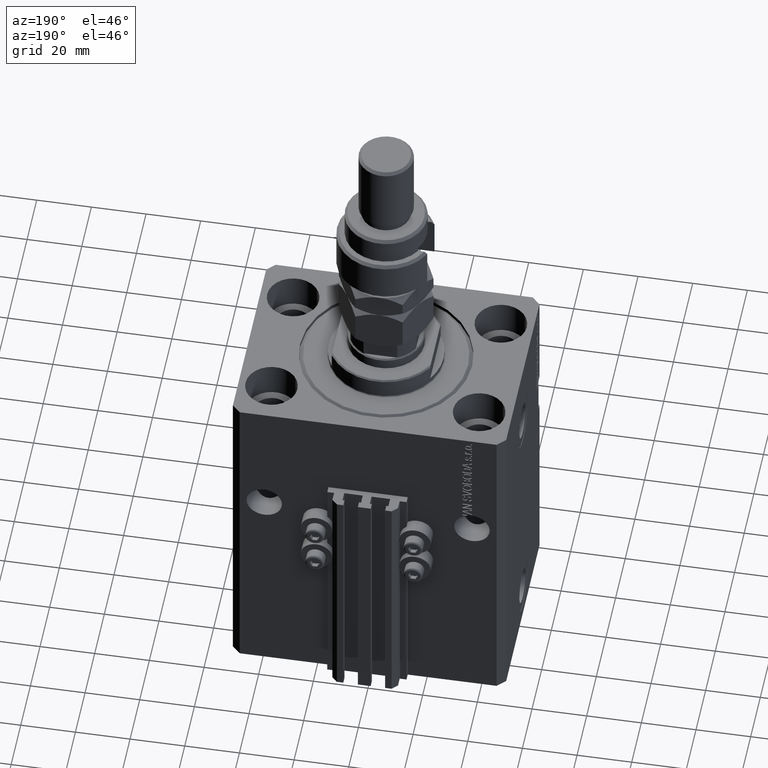
[diagram: clean part render]
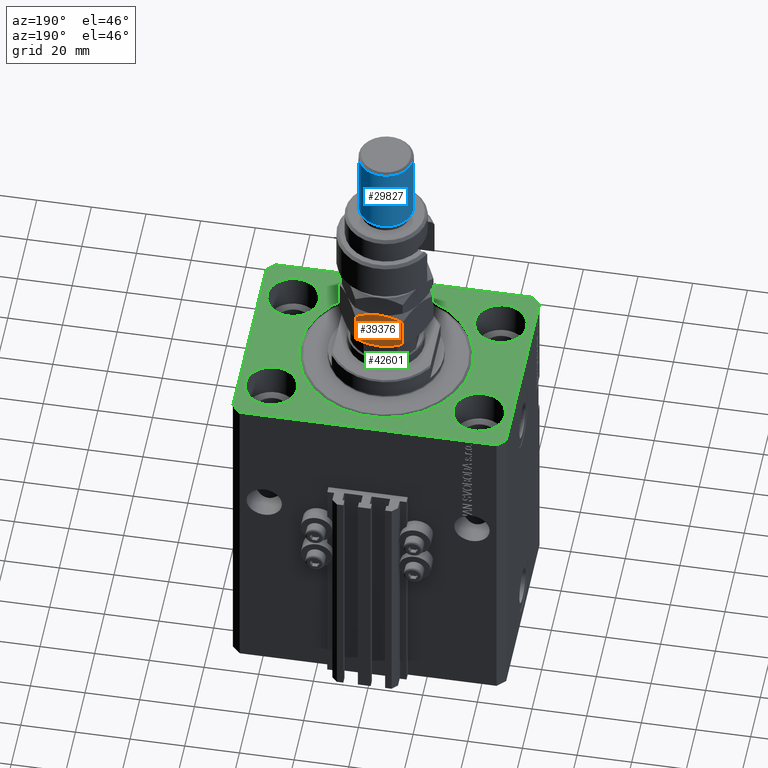
[diagram: same view with three faces highlighted in distinct colors, each labeled with its STEP entity id]
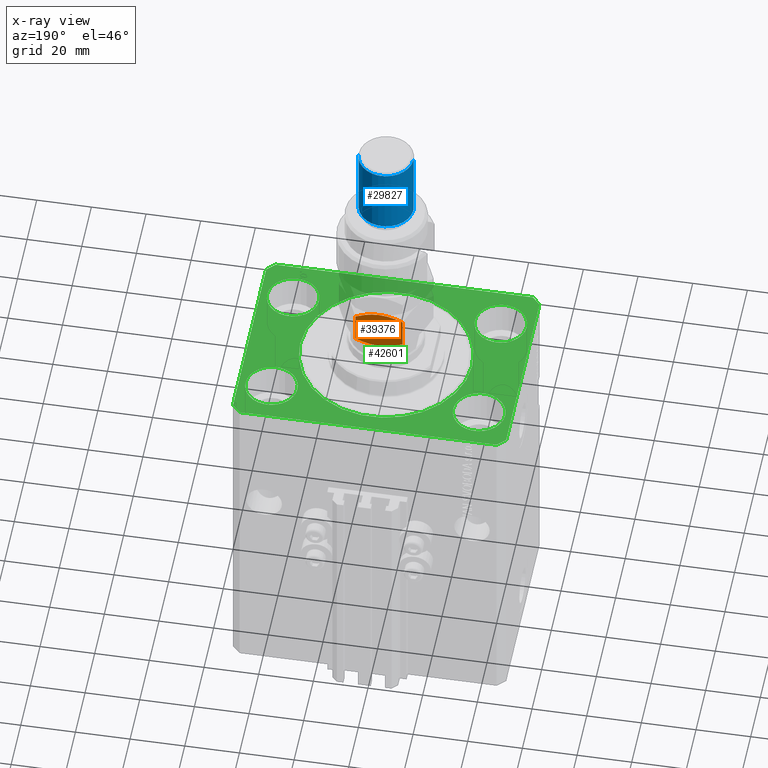
[diagram: x-ray of the same camera — body ghosted, the three highlighted faces saturated]
A machine part, auxiliary view with three faces highlighted in distinct colors.
The next image is the same camera in x-ray (body ghosted, the three faces saturated) — at least one of them is partly hidden behind the body in this view.
Their STEP definitions:

[orange] entity #39376 — the highlighted planar face has unit normal (0, -1, 0).
#1253 = CARTESIAN_POINT ( 'NONE',  ( -7.499999999999992895, 12.99038105676658361, 0.000000000000000000 ) ) ;
#1356 = CARTESIAN_POINT ( 'NONE',  ( -2.383929548160348855, 15.94414570932928576, 1.060479031370877401 ) ) ;
#2231 = ORIENTED_EDGE ( 'NONE', *, *, #24499, .F. ) ;
#2260 = EDGE_CURVE ( 'NONE', #4050, #44519, #44804, .T. ) ;
#2939 = CARTESIAN_POINT ( 'NONE',  ( -15.00000000000000000, 8.660254037844392627, 13.67949192431123429 ) ) ;
#3282 = ORIENTED_EDGE ( 'NONE', *, *, #18546, .T. ) ;
#3288 = VERTEX_POINT ( 'NONE', #19248 ) ;
#3610 = CARTESIAN_POINT ( 'NONE',  ( -15.00000000000000000, 8.660254037844392627, 13.67949192431123429 ) ) ;
#3842 = CARTESIAN_POINT ( 'NONE',  ( -12.62116548881249400, 10.03367478323607109, 1.064486067744009556 ) ) ;
#4050 = VERTEX_POINT ( 'NONE', #16552 ) ;
#4214 = CARTESIAN_POINT ( 'NONE',  ( 7.621669386706803087E-17, 17.32050807568877104, 2.320508075688761718 ) ) ;
#5192 = CARTESIAN_POINT ( 'NONE',  ( 7.621669386706803087E-17, 17.32050807568877104, 2.320508075688761718 ) ) ;
#6114 = CARTESIAN_POINT ( 'NONE',  ( -15.00000000000000000, 8.660254037844394404, 2.320508075688769711 ) ) ;
#6126 = DIRECTION ( 'NONE',  ( 0.4999999999999995559, -0.8660254037844389297, 0.000000000000000000 ) ) ;
#6305 = CARTESIAN_POINT ( 'NONE',  ( -6.843123817691743938, 13.36962869744650995, 16.00000000000000355 ) ) ;
#7519 = CARTESIAN_POINT ( 'NONE',  ( -13.82525345580783771, 9.338494271363320109, 14.35773215783021683 ) ) ;
#10585 = CARTESIAN_POINT ( 'NONE',  ( -7.499999999999991118, 12.99038105676658184, 16.00000000000000000 ) ) ;
#10698 = PLANE ( 'NONE',  #24528 ) ;
#10879 = CARTESIAN_POINT ( 'NONE',  ( -6.176419610670691895, 13.75455055083996747, 15.94046462602529957 ) ) ;
#12485 = CARTESIAN_POINT ( 'NONE',  ( -13.82389157469336283, 9.339280553791375894, 1.641481559741795548 ) ) ;
#12591 = B_SPLINE_CURVE_WITH_KNOTS ( 'NONE', 3,
 ( #10585, #18729, #30508, #18989, #7519, #2939 ),
 .UNSPECIFIED., .F., .F.,
 ( 4, 2, 4 ),
 ( 0.008977392552884438590, 0.01343452311421656012, 0.01789165367554868338 ),
 .UNSPECIFIED. ) ;
#14704 = CARTESIAN_POINT ( 'NONE',  ( -7.499999999999991118, 12.99038105676658184, 16.00000000000000000 ) ) ;
#15205 = CARTESIAN_POINT ( 'NONE',  ( -15.00000000000000000, 8.660254037844392627, 16.00000000000000000 ) ) ;
#15247 = VERTEX_POINT ( 'NONE', #3610 ) ;
#15683 = ORIENTED_EDGE ( 'NONE', *, *, #45319, .F. ) ;
#15720 = DIRECTION ( 'NONE',  ( -0.000000000000000000, -0.000000000000000000, -1.000000000000000000 ) ) ;
#15872 = VECTOR ( 'NONE', #16933, 1000.000000000000000 ) ;
#16414 = VERTEX_POINT ( 'NONE', #16677 ) ;
#16552 = CARTESIAN_POINT ( 'NONE',  ( -7.499999999999992895, 12.99038105676658361, 0.000000000000000000 ) ) ;
#16677 = CARTESIAN_POINT ( 'NONE',  ( 3.803331551779305683E-16, 17.32050807568877104, 13.67949192431124317 ) ) ;
#16933 = DIRECTION ( 'NONE',  ( -0.000000000000000000, -0.000000000000000000, -1.000000000000000000 ) ) ;
#17056 = CARTESIAN_POINT ( 'NONE',  ( -10.11832554202262280, 11.47869010025375403, 0.2838026619462963862 ) ) ;
#18546 = EDGE_CURVE ( 'NONE', #16414, #44519, #36112, .T. ) ;
#18729 = CARTESIAN_POINT ( 'NONE',  ( -8.804550678576905653, 12.23719837131869781, 16.00000000000000000 ) ) ;
#18989 = CARTESIAN_POINT ( 'NONE',  ( -12.61607045183964715, 10.03661640420387435, 14.93952096862911816 ) ) ;
#19248 = CARTESIAN_POINT ( 'NONE',  ( -7.499999999999991118, 12.99038105676658184, 16.00000000000000000 ) ) ;
#19253 = ORIENTED_EDGE ( 'NONE', *, *, #2260, .F. ) ;
#19754 = CARTESIAN_POINT ( 'NONE',  ( -1.174746544192158293, 16.64226784216984356, 1.642267842169780501 ) ) ;
#20011 = VECTOR ( 'NONE', #15720, 1000.000000000000000 ) ;
#22127 = CARTESIAN_POINT ( 'NONE',  ( -2.378834511187503331, 15.94708733029709435, 14.93551393225599710 ) ) ;
#22376 = CARTESIAN_POINT ( 'NONE',  ( -4.881674457977373649, 14.50207201327941675, 15.71619733805371055 ) ) ;
#23143 = EDGE_LOOP ( 'NONE', ( #15683, #26123, #34028, #2231, #3282, #19253 ) ) ;
#23483 = CARTESIAN_POINT ( 'NONE',  ( -10.75222765045650597, 11.11270654730957119, 0.4475714085130295117 ) ) ;
#24085 = CARTESIAN_POINT ( 'NONE',  ( -6.195449321423083688, 13.74356374221447297, 3.003578830963748213E-15 ) ) ;
#24333 = CARTESIAN_POINT ( 'NONE',  ( -7.499999999999992895, 12.99038105676658361, 0.000000000000000000 ) ) ;
#24499 = EDGE_CURVE ( 'NONE', #16414, #3288, #32323, .T. ) ;
#24528 = AXIS2_PLACEMENT_3D ( 'NONE', #49768, #6126, #26533 ) ;
#24566 = EDGE_CURVE ( 'NONE', #15247, #43864, #38707, .T. ) ;
#26123 = ORIENTED_EDGE ( 'NONE', *, *, #24566, .F. ) ;
#26533 = DIRECTION ( 'NONE',  ( 0.8660254037844389297, 0.4999999999999995559, 0.000000000000000000 ) ) ;
#27156 = EDGE_CURVE ( 'NONE', #3288, #15247, #12591, .T. ) ;
#29874 = FACE_OUTER_BOUND ( 'NONE', #23143, .T. ) ;
#30508 = CARTESIAN_POINT ( 'NONE',  ( -10.08691881950258740, 11.49682277995505864, 15.76967007806078236 ) ) ;
#32323 = B_SPLINE_CURVE_WITH_KNOTS ( 'NONE', 3,
 ( #38189, #33379, #22127, #33888, #22376, #10879, #6305, #14704 ),
 .UNSPECIFIED., .F., .F.,
 ( 4, 2, 2, 4 ),
 ( 2.544309033646407248E-07, 0.004488823491893900036, 0.006733108022389169313, 0.008977392552884438590 ),
 .UNSPECIFIED. ) ;
#32643 = CARTESIAN_POINT ( 'NONE',  ( -8.156876182308247181, 12.61113341608666083, 3.106916850528774038E-15 ) ) ;
#33379 = CARTESIAN_POINT ( 'NONE',  ( -1.176108425306640504, 16.64148155974180199, 14.35851844025821578 ) ) ;
#33888 = CARTESIAN_POINT ( 'NONE',  ( -4.247772349543481596, 14.86805556622359070, 15.55242859148697043 ) ) ;
#34028 = ORIENTED_EDGE ( 'NONE', *, *, #27156, .F. ) ;
#36112 = LINE ( 'NONE', #48622, #15872 ) ;
#36229 = CARTESIAN_POINT ( 'NONE',  ( -8.823580389329299223, 12.22621156269320863, 0.05953537397470442388 ) ) ;
#38189 = CARTESIAN_POINT ( 'NONE',  ( 3.803331551779305683E-16, 17.32050807568877104, 13.67949192431124317 ) ) ;
#38458 = B_SPLINE_CURVE_WITH_KNOTS ( 'NONE', 3,
 ( #38812, #12485, #3842, #23483, #17056, #36229, #32643, #1253 ),
 .UNSPECIFIED., .F., .F.,
 ( 4, 2, 2, 4 ),
 ( 2.544309033652409006E-07, 0.004488823491893913914, 0.006733108022389184058, 0.008977392552884454202 ),
 .UNSPECIFIED. ) ;
#38707 = LINE ( 'NONE', #15205, #20011 ) ;
#38812 = CARTESIAN_POINT ( 'NONE',  ( -15.00000000000000000, 8.660254037844394404, 2.320508075688769711 ) ) ;
#39376 = ADVANCED_FACE ( 'NONE', ( #29874 ), #10698, .F. ) ;
#43242 = CARTESIAN_POINT ( 'NONE',  ( -4.913081180497406386, 14.48393933357811214, 0.2303299219392169472 ) ) ;
#43864 = VERTEX_POINT ( 'NONE', #6114 ) ;
#44519 = VERTEX_POINT ( 'NONE', #4214 ) ;
#44804 = B_SPLINE_CURVE_WITH_KNOTS ( 'NONE', 3,
 ( #24333, #24085, #43242, #1356, #19754, #5192 ),
 .UNSPECIFIED., .F., .F.,
 ( 4, 2, 4 ),
 ( 0.008977392552884454202, 0.01343452311421656706, 0.01789165367554867991 ),
 .UNSPECIFIED. ) ;
#45319 = EDGE_CURVE ( 'NONE', #43864, #4050, #38458, .T. ) ;
#48622 = CARTESIAN_POINT ( 'NONE',  ( 0.000000000000000000, 17.32050807568877104, 16.00000000000000000 ) ) ;
#49768 = CARTESIAN_POINT ( 'NONE',  ( 0.000000000000000000, 17.32050807568877104, 16.00000000000000000 ) ) ;

[blue] entity #29827 — the highlighted cylindrical surface (edge-blend (fillet) strip) has radius 10 mm, axis along (-0, -0, -1).
#314 = CIRCLE ( 'NONE', #22300, 10.00000000000000000 ) ;
#1388 = CARTESIAN_POINT ( 'NONE',  ( 10.00000000000000000, 1.224646799147353256E-15, 56.00000000000000711 ) ) ;
#3131 = EDGE_CURVE ( 'NONE', #45770, #21581, #48997, .T. ) ;
#3662 = CARTESIAN_POINT ( 'NONE',  ( 10.00000000000000000, 1.224646799147353256E-15, 29.00000000000000711 ) ) ;
#3751 = DIRECTION ( 'NONE',  ( -0.000000000000000000, -0.000000000000000000, -1.000000000000000000 ) ) ;
#5223 = DIRECTION ( 'NONE',  ( -0.000000000000000000, -0.000000000000000000, -1.000000000000000000 ) ) ;
#7339 = EDGE_CURVE ( 'NONE', #23734, #21581, #33004, .T. ) ;
#7540 = CARTESIAN_POINT ( 'NONE',  ( -10.00000000000000000, 0.000000000000000000, 29.00000000000000711 ) ) ;
#8855 = EDGE_LOOP ( 'NONE', ( #15739, #44722, #21887, #9577 ) ) ;
#9577 = ORIENTED_EDGE ( 'NONE', *, *, #7339, .F. ) ;
#11702 = DIRECTION ( 'NONE',  ( -0.000000000000000000, -0.000000000000000000, -1.000000000000000000 ) ) ;
#12889 = EDGE_CURVE ( 'NONE', #23734, #48158, #314, .T. ) ;
#15739 = ORIENTED_EDGE ( 'NONE', *, *, #12889, .T. ) ;
#16929 = AXIS2_PLACEMENT_3D ( 'NONE', #23140, #3751, #34889 ) ;
#19601 = VECTOR ( 'NONE', #5223, 1000.000000000000000 ) ;
#21581 = VERTEX_POINT ( 'NONE', #7540 ) ;
#21887 = ORIENTED_EDGE ( 'NONE', *, *, #3131, .T. ) ;
#22300 = AXIS2_PLACEMENT_3D ( 'NONE', #49883, #42969, #30977 ) ;
#23140 = CARTESIAN_POINT ( 'NONE',  ( 0.000000000000000000, 0.000000000000000000, 56.00000000000000711 ) ) ;
#23189 = CARTESIAN_POINT ( 'NONE',  ( -10.00000000000000000, 0.000000000000000000, 56.00000000000000711 ) ) ;
#23727 = VECTOR ( 'NONE', #11702, 1000.000000000000000 ) ;
#23734 = VERTEX_POINT ( 'NONE', #35601 ) ;
#28656 = CARTESIAN_POINT ( 'NONE',  ( 10.00000000000000000, 1.224646799147353256E-15, 54.99999999999998579 ) ) ;
#29827 = ADVANCED_FACE ( 'NONE', ( #39222 ), #38718, .T. ) ;
#30014 = DIRECTION ( 'NONE',  ( 1.000000000000000000, 0.000000000000000000, 0.000000000000000000 ) ) ;
#30977 = DIRECTION ( 'NONE',  ( 1.000000000000000000, 0.000000000000000000, 0.000000000000000000 ) ) ;
#33004 = LINE ( 'NONE', #23189, #23727 ) ;
#33519 = AXIS2_PLACEMENT_3D ( 'NONE', #45825, #45079, #30014 ) ;
#34889 = DIRECTION ( 'NONE',  ( -1.000000000000000000, 0.000000000000000000, 0.000000000000000000 ) ) ;
#35601 = CARTESIAN_POINT ( 'NONE',  ( -10.00000000000000000, 0.000000000000000000, 54.99999999999998579 ) ) ;
#35860 = LINE ( 'NONE', #1388, #19601 ) ;
#38718 = CYLINDRICAL_SURFACE ( 'NONE', #16929, 10.00000000000000000 ) ;
#39222 = FACE_OUTER_BOUND ( 'NONE', #8855, .T. ) ;
#42969 = DIRECTION ( 'NONE',  ( 0.000000000000000000, 0.000000000000000000, -1.000000000000000000 ) ) ;
#44722 = ORIENTED_EDGE ( 'NONE', *, *, #47097, .T. ) ;
#45079 = DIRECTION ( 'NONE',  ( -0.000000000000000000, -0.000000000000000000, 1.000000000000000000 ) ) ;
#45770 = VERTEX_POINT ( 'NONE', #3662 ) ;
#45825 = CARTESIAN_POINT ( 'NONE',  ( 0.000000000000000000, 0.000000000000000000, 29.00000000000000711 ) ) ;
#47097 = EDGE_CURVE ( 'NONE', #48158, #45770, #35860, .T. ) ;
#48158 = VERTEX_POINT ( 'NONE', #28656 ) ;
#48997 = CIRCLE ( 'NONE', #33519, 10.00000000000000000 ) ;
#49883 = CARTESIAN_POINT ( 'NONE',  ( 0.000000000000000000, 0.000000000000000000, 54.99999999999998579 ) ) ;

[green] entity #42601 — the highlighted planar face has unit normal (0, 0, 1).
#365 = EDGE_CURVE ( 'NONE', #13328, #2269, #28286, .T. ) ;
#602 = EDGE_CURVE ( 'NONE', #2269, #43911, #15728, .T. ) ;
#1541 = DIRECTION ( 'NONE',  ( -0.7071067811865483499, -0.7071067811865466846, 0.000000000000000000 ) ) ;
#1598 = CARTESIAN_POINT ( 'NONE',  ( -50.00000000000001421, 34.50000000000000000, 0.000000000000000000 ) ) ;
#1901 = DIRECTION ( 'NONE',  ( 0.000000000000000000, 0.000000000000000000, 1.000000000000000000 ) ) ;
#2037 = FACE_BOUND ( 'NONE', #38774, .T. ) ;
#2049 = CARTESIAN_POINT ( 'NONE',  ( -47.00000000000001421, 37.50000000000000000, 0.000000000000000000 ) ) ;
#2069 = CARTESIAN_POINT ( 'NONE',  ( -47.00000000000001421, 37.50000000000000000, 0.000000000000000000 ) ) ;
#2269 = VERTEX_POINT ( 'NONE', #28176 ) ;
#2731 = EDGE_CURVE ( 'NONE', #43911, #32968, #37029, .T. ) ;
#3127 = VERTEX_POINT ( 'NONE', #14421 ) ;
#3372 = CIRCLE ( 'NONE', #25420, 31.50000000000000000 ) ;
#4263 = CARTESIAN_POINT ( 'NONE',  ( -28.50000000000000355, -22.50000000000000000, 0.000000000000000000 ) ) ;
#4641 = VERTEX_POINT ( 'NONE', #20202 ) ;
#4814 = CIRCLE ( 'NONE', #28471, 9.500000000000001776 ) ;
#4854 = ORIENTED_EDGE ( 'NONE', *, *, #50448, .F. ) ;
#4939 = VERTEX_POINT ( 'NONE', #35951 ) ;
#5079 = EDGE_LOOP ( 'NONE', ( #25483, #18028, #14191, #28559, #24417, #23672, #5328, #34153 ) ) ;
#5328 = ORIENTED_EDGE ( 'NONE', *, *, #23679, .T. ) ;
#5403 = EDGE_CURVE ( 'NONE', #32968, #11667, #13561, .T. ) ;
#5579 = VERTEX_POINT ( 'NONE', #32913 ) ;
#5642 = DIRECTION ( 'NONE',  ( 2.011273595335428326E-16, -1.000000000000000000, 0.000000000000000000 ) ) ;
#5873 = CARTESIAN_POINT ( 'NONE',  ( -47.00000000000000000, -37.49999999999999289, 0.000000000000000000 ) ) ;
#6038 = ORIENTED_EDGE ( 'NONE', *, *, #37523, .F. ) ;
#6390 = EDGE_LOOP ( 'NONE', ( #39582, #46888 ) ) ;
#6646 = CARTESIAN_POINT ( 'NONE',  ( 47.50000000000000711, -22.50000000000000000, 0.000000000000000000 ) ) ;
#6742 = DIRECTION ( 'NONE',  ( 0.000000000000000000, 0.000000000000000000, 1.000000000000000000 ) ) ;
#6972 = VERTEX_POINT ( 'NONE', #8051 ) ;
#7570 = CARTESIAN_POINT ( 'NONE',  ( 47.50000000000000711, 22.50000000000001421, 0.000000000000000000 ) ) ;
#8051 = CARTESIAN_POINT ( 'NONE',  ( -31.50000000000000000, 3.857637417314162689E-15, 0.000000000000000000 ) ) ;
#9372 = AXIS2_PLACEMENT_3D ( 'NONE', #45025, #22773, #14614 ) ;
#9741 = LINE ( 'NONE', #25836, #13106 ) ;
#9798 = VECTOR ( 'NONE', #5642, 1000.000000000000000 ) ;
#10282 = EDGE_CURVE ( 'NONE', #4939, #32510, #42608, .T. ) ;
#10410 = ORIENTED_EDGE ( 'NONE', *, *, #29098, .F. ) ;
#11095 = ORIENTED_EDGE ( 'NONE', *, *, #42539, .F. ) ;
#11358 = CIRCLE ( 'NONE', #26867, 9.500000000000001776 ) ;
#11555 = CIRCLE ( 'NONE', #36016, 9.500000000000001776 ) ;
#11584 = AXIS2_PLACEMENT_3D ( 'NONE', #41333, #44911, #40820 ) ;
#11667 = VERTEX_POINT ( 'NONE', #32578 ) ;
#12392 = CARTESIAN_POINT ( 'NONE',  ( 47.00000000000056843, 37.49999999999999289, 0.000000000000000000 ) ) ;
#12451 = CARTESIAN_POINT ( 'NONE',  ( 50.00000000000051870, 34.49999999999995026, 0.000000000000000000 ) ) ;
#12668 = DIRECTION ( 'NONE',  ( 1.000000000000000000, 0.000000000000000000, 0.000000000000000000 ) ) ;
#12853 = AXIS2_PLACEMENT_3D ( 'NONE', #14226, #41289, #29559 ) ;
#12942 = DIRECTION ( 'NONE',  ( -0.7071067811865361374, 0.7071067811865588970, 0.000000000000000000 ) ) ;
#13106 = VECTOR ( 'NONE', #33999, 1000.000000000000114 ) ;
#13328 = VERTEX_POINT ( 'NONE', #40553 ) ;
#13511 = FACE_BOUND ( 'NONE', #6390, .T. ) ;
#13561 = LINE ( 'NONE', #45720, #9798 ) ;
#13751 = FACE_BOUND ( 'NONE', #30641, .T. ) ;
#14045 = DIRECTION ( 'NONE',  ( 1.000000000000000000, -1.476360405086644309E-16, 0.000000000000000000 ) ) ;
#14131 = EDGE_CURVE ( 'NONE', #4641, #24087, #28066, .T. ) ;
#14191 = ORIENTED_EDGE ( 'NONE', *, *, #5403, .T. ) ;
#14226 = CARTESIAN_POINT ( 'NONE',  ( 38.00000000000000711, -22.50000000000000000, 0.000000000000000000 ) ) ;
#14270 = DIRECTION ( 'NONE',  ( 1.000000000000000000, 0.000000000000000000, -0.000000000000000000 ) ) ;
#14421 = CARTESIAN_POINT ( 'NONE',  ( 28.50000000000000355, -22.50000000000000000, 0.000000000000000000 ) ) ;
#14506 = CIRCLE ( 'NONE', #12853, 9.500000000000001776 ) ;
#14614 = DIRECTION ( 'NONE',  ( 1.000000000000000000, 0.000000000000000000, 0.000000000000000000 ) ) ;
#15728 = LINE ( 'NONE', #12392, #36628 ) ;
#16720 = VECTOR ( 'NONE', #37922, 1000.000000000000000 ) ;
#17216 = DIRECTION ( 'NONE',  ( 0.000000000000000000, 0.000000000000000000, 1.000000000000000000 ) ) ;
#18028 = ORIENTED_EDGE ( 'NONE', *, *, #2731, .T. ) ;
#18220 = CARTESIAN_POINT ( 'NONE',  ( -38.00000000000000711, -22.50000000000000000, 0.000000000000000000 ) ) ;
#19077 = AXIS2_PLACEMENT_3D ( 'NONE', #21279, #1901, #39924 ) ;
#19527 = VECTOR ( 'NONE', #14045, 1000.000000000000000 ) ;
#19755 = VERTEX_POINT ( 'NONE', #20477 ) ;
#20202 = CARTESIAN_POINT ( 'NONE',  ( -47.50000000000000711, 22.50000000000000000, 0.000000000000000000 ) ) ;
#20463 = CARTESIAN_POINT ( 'NONE',  ( -28.50000000000000355, 22.50000000000000000, 0.000000000000000000 ) ) ;
#20477 = CARTESIAN_POINT ( 'NONE',  ( -47.00000000000000000, -37.49999999999999289, 0.000000000000000000 ) ) ;
#21279 = CARTESIAN_POINT ( 'NONE',  ( -38.00000000000000711, 22.50000000000000000, 0.000000000000000000 ) ) ;
#21771 = VERTEX_POINT ( 'NONE', #4263 ) ;
#21829 = DIRECTION ( 'NONE',  ( 1.000000000000000000, 0.000000000000000000, 0.000000000000000000 ) ) ;
#21945 = LINE ( 'NONE', #5873, #19527 ) ;
#22068 = DIRECTION ( 'NONE',  ( 1.000000000000000000, 0.000000000000000000, 0.000000000000000000 ) ) ;
#22773 = DIRECTION ( 'NONE',  ( 0.000000000000000000, 0.000000000000000000, 1.000000000000000000 ) ) ;
#22906 = VERTEX_POINT ( 'NONE', #24347 ) ;
#23002 = EDGE_CURVE ( 'NONE', #6972, #28921, #28959, .T. ) ;
#23672 = ORIENTED_EDGE ( 'NONE', *, *, #44017, .T. ) ;
#23679 = EDGE_CURVE ( 'NONE', #5579, #13328, #50183, .T. ) ;
#23699 = CARTESIAN_POINT ( 'NONE',  ( 31.50000000000000000, 0.000000000000000000, 0.000000000000000000 ) ) ;
#24087 = VERTEX_POINT ( 'NONE', #20463 ) ;
#24347 = CARTESIAN_POINT ( 'NONE',  ( 47.00000000000000000, -37.50000000000000711, 0.000000000000000000 ) ) ;
#24417 = ORIENTED_EDGE ( 'NONE', *, *, #33336, .T. ) ;
#25420 = AXIS2_PLACEMENT_3D ( 'NONE', #34671, #46928, #43329 ) ;
#25483 = ORIENTED_EDGE ( 'NONE', *, *, #602, .T. ) ;
#25767 = FACE_OUTER_BOUND ( 'NONE', #5079, .T. ) ;
#25836 = CARTESIAN_POINT ( 'NONE',  ( -50.00000000000000000, -34.50000000000000000, 0.000000000000000000 ) ) ;
#26867 = AXIS2_PLACEMENT_3D ( 'NONE', #45081, #33604, #21829 ) ;
#27864 = EDGE_LOOP ( 'NONE', ( #4854, #11095 ) ) ;
#28012 = DIRECTION ( 'NONE',  ( 0.000000000000000000, 0.000000000000000000, 1.000000000000000000 ) ) ;
#28066 = CIRCLE ( 'NONE', #19077, 9.500000000000001776 ) ;
#28176 = CARTESIAN_POINT ( 'NONE',  ( 47.00000000000056843, 37.49999999999999289, 0.000000000000000000 ) ) ;
#28286 = LINE ( 'NONE', #12451, #40711 ) ;
#28471 = AXIS2_PLACEMENT_3D ( 'NONE', #48388, #17216, #22068 ) ;
#28559 = ORIENTED_EDGE ( 'NONE', *, *, #48323, .T. ) ;
#28921 = VERTEX_POINT ( 'NONE', #23699 ) ;
#28929 = DIRECTION ( 'NONE',  ( -1.000000000000000000, 7.381802025433175941E-17, 0.000000000000000000 ) ) ;
#28959 = CIRCLE ( 'NONE', #9372, 31.50000000000000000 ) ;
#29098 = EDGE_CURVE ( 'NONE', #34235, #3127, #14506, .T. ) ;
#29345 = CIRCLE ( 'NONE', #32612, 9.500000000000001776 ) ;
#29559 = DIRECTION ( 'NONE',  ( 1.000000000000000000, 0.000000000000000000, 0.000000000000000000 ) ) ;
#29897 = DIRECTION ( 'NONE',  ( 0.7071067811865483499, 0.7071067811865466846, 0.000000000000000000 ) ) ;
#30101 = CARTESIAN_POINT ( 'NONE',  ( 0.000000000000000000, 0.000000000000000000, 0.000000000000000000 ) ) ;
#30133 = DIRECTION ( 'NONE',  ( 0.000000000000000000, 0.000000000000000000, 1.000000000000000000 ) ) ;
#30365 = AXIS2_PLACEMENT_3D ( 'NONE', #37528, #30133, #45199 ) ;
#30641 = EDGE_LOOP ( 'NONE', ( #42293, #46488 ) ) ;
#31168 = CARTESIAN_POINT ( 'NONE',  ( -47.50000000000000711, -22.50000000000000000, 0.000000000000000000 ) ) ;
#31835 = CARTESIAN_POINT ( 'NONE',  ( 38.00000000000000711, -22.50000000000000000, 0.000000000000000000 ) ) ;
#32510 = VERTEX_POINT ( 'NONE', #7570 ) ;
#32578 = CARTESIAN_POINT ( 'NONE',  ( -50.00000000000000000, -34.50000000000000000, 0.000000000000000000 ) ) ;
#32612 = AXIS2_PLACEMENT_3D ( 'NONE', #31835, #28012, #12668 ) ;
#32688 = EDGE_CURVE ( 'NONE', #24087, #4641, #4814, .T. ) ;
#32913 = CARTESIAN_POINT ( 'NONE',  ( 50.00000000000000000, -34.50000000000000711, 0.000000000000000000 ) ) ;
#32968 = VERTEX_POINT ( 'NONE', #1598 ) ;
#33059 = DIRECTION ( 'NONE',  ( 1.000000000000000000, 0.000000000000000000, 0.000000000000000000 ) ) ;
#33336 = EDGE_CURVE ( 'NONE', #19755, #22906, #21945, .T. ) ;
#33604 = DIRECTION ( 'NONE',  ( 0.000000000000000000, 0.000000000000000000, 1.000000000000000000 ) ) ;
#33624 = CIRCLE ( 'NONE', #11584, 9.500000000000001776 ) ;
#33695 = FACE_BOUND ( 'NONE', #34394, .T. ) ;
#33732 = LINE ( 'NONE', #42116, #43266 ) ;
#33999 = DIRECTION ( 'NONE',  ( 0.7071067811865491270, -0.7071067811865459074, 0.000000000000000000 ) ) ;
#34153 = ORIENTED_EDGE ( 'NONE', *, *, #365, .T. ) ;
#34235 = VERTEX_POINT ( 'NONE', #6646 ) ;
#34394 = EDGE_LOOP ( 'NONE', ( #10410, #6038 ) ) ;
#34671 = CARTESIAN_POINT ( 'NONE',  ( 0.000000000000000000, 0.000000000000000000, 0.000000000000000000 ) ) ;
#35951 = CARTESIAN_POINT ( 'NONE',  ( 28.50000000000000355, 22.50000000000001421, 0.000000000000000000 ) ) ;
#36016 = AXIS2_PLACEMENT_3D ( 'NONE', #18220, #6742, #33059 ) ;
#36132 = EDGE_CURVE ( 'NONE', #32510, #4939, #11358, .T. ) ;
#36628 = VECTOR ( 'NONE', #28929, 1000.000000000000000 ) ;
#37029 = LINE ( 'NONE', #2069, #45710 ) ;
#37523 = EDGE_CURVE ( 'NONE', #3127, #34235, #29345, .T. ) ;
#37528 = CARTESIAN_POINT ( 'NONE',  ( 38.00000000000000711, 22.50000000000001421, 0.000000000000000000 ) ) ;
#37922 = DIRECTION ( 'NONE',  ( 7.441712302741091634E-15, 1.000000000000000000, 0.000000000000000000 ) ) ;
#38774 = EDGE_LOOP ( 'NONE', ( #47466, #43348 ) ) ;
#39582 = ORIENTED_EDGE ( 'NONE', *, *, #32688, .F. ) ;
#39924 = DIRECTION ( 'NONE',  ( 1.000000000000000000, 0.000000000000000000, 0.000000000000000000 ) ) ;
#40553 = CARTESIAN_POINT ( 'NONE',  ( 50.00000000000051870, 34.49999999999995026, 0.000000000000000000 ) ) ;
#40711 = VECTOR ( 'NONE', #12942, 1000.000000000000114 ) ;
#40820 = DIRECTION ( 'NONE',  ( 1.000000000000000000, 0.000000000000000000, 0.000000000000000000 ) ) ;
#41289 = DIRECTION ( 'NONE',  ( 0.000000000000000000, 0.000000000000000000, 1.000000000000000000 ) ) ;
#41333 = CARTESIAN_POINT ( 'NONE',  ( -38.00000000000000711, -22.50000000000000000, 0.000000000000000000 ) ) ;
#42116 = CARTESIAN_POINT ( 'NONE',  ( 47.00000000000000000, -37.50000000000000711, 0.000000000000000000 ) ) ;
#42293 = ORIENTED_EDGE ( 'NONE', *, *, #45652, .F. ) ;
#42539 = EDGE_CURVE ( 'NONE', #45289, #21771, #33624, .T. ) ;
#42601 = ADVANCED_FACE ( 'NONE', ( #48746, #33695, #2037, #13511, #13751, #25767 ), #49007, .T. ) ;
#42608 = CIRCLE ( 'NONE', #30365, 9.500000000000001776 ) ;
#43266 = VECTOR ( 'NONE', #29897, 1000.000000000000000 ) ;
#43329 = DIRECTION ( 'NONE',  ( 1.000000000000000000, 0.000000000000000000, 0.000000000000000000 ) ) ;
#43348 = ORIENTED_EDGE ( 'NONE', *, *, #10282, .F. ) ;
#43911 = VERTEX_POINT ( 'NONE', #2049 ) ;
#44017 = EDGE_CURVE ( 'NONE', #22906, #5579, #33732, .T. ) ;
#44911 = DIRECTION ( 'NONE',  ( 0.000000000000000000, 0.000000000000000000, 1.000000000000000000 ) ) ;
#45025 = CARTESIAN_POINT ( 'NONE',  ( 0.000000000000000000, 0.000000000000000000, 0.000000000000000000 ) ) ;
#45081 = CARTESIAN_POINT ( 'NONE',  ( 38.00000000000000711, 22.50000000000001421, 0.000000000000000000 ) ) ;
#45199 = DIRECTION ( 'NONE',  ( 1.000000000000000000, 0.000000000000000000, 0.000000000000000000 ) ) ;
#45289 = VERTEX_POINT ( 'NONE', #31168 ) ;
#45580 = CARTESIAN_POINT ( 'NONE',  ( 50.00000000000000000, -34.50000000000000711, 0.000000000000000000 ) ) ;
#45652 = EDGE_CURVE ( 'NONE', #28921, #6972, #3372, .T. ) ;
#45710 = VECTOR ( 'NONE', #1541, 1000.000000000000000 ) ;
#45720 = CARTESIAN_POINT ( 'NONE',  ( -50.00000000000001421, 34.50000000000000000, 0.000000000000000000 ) ) ;
#46488 = ORIENTED_EDGE ( 'NONE', *, *, #23002, .F. ) ;
#46888 = ORIENTED_EDGE ( 'NONE', *, *, #14131, .F. ) ;
#46928 = DIRECTION ( 'NONE',  ( 0.000000000000000000, 0.000000000000000000, 1.000000000000000000 ) ) ;
#47466 = ORIENTED_EDGE ( 'NONE', *, *, #36132, .F. ) ;
#47495 = AXIS2_PLACEMENT_3D ( 'NONE', #30101, #49263, #14270 ) ;
#48323 = EDGE_CURVE ( 'NONE', #11667, #19755, #9741, .T. ) ;
#48388 = CARTESIAN_POINT ( 'NONE',  ( -38.00000000000000711, 22.50000000000000000, 0.000000000000000000 ) ) ;
#48746 = FACE_BOUND ( 'NONE', #27864, .T. ) ;
#49007 = PLANE ( 'NONE',  #47495 ) ;
#49263 = DIRECTION ( 'NONE',  ( 0.000000000000000000, 0.000000000000000000, 1.000000000000000000 ) ) ;
#50183 = LINE ( 'NONE', #45580, #16720 ) ;
#50448 = EDGE_CURVE ( 'NONE', #21771, #45289, #11555, .T. ) ;